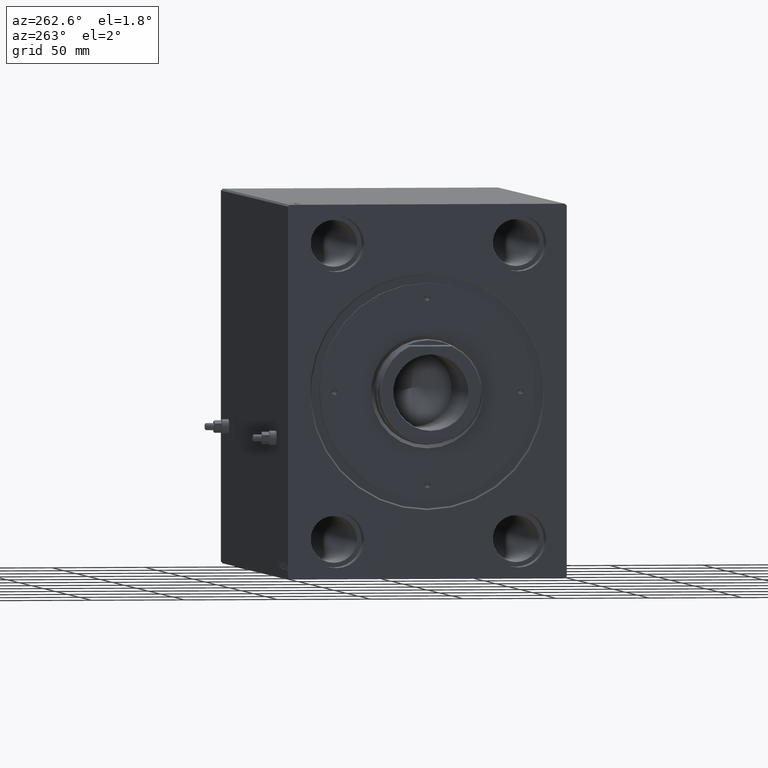
[diagram: clean part render]
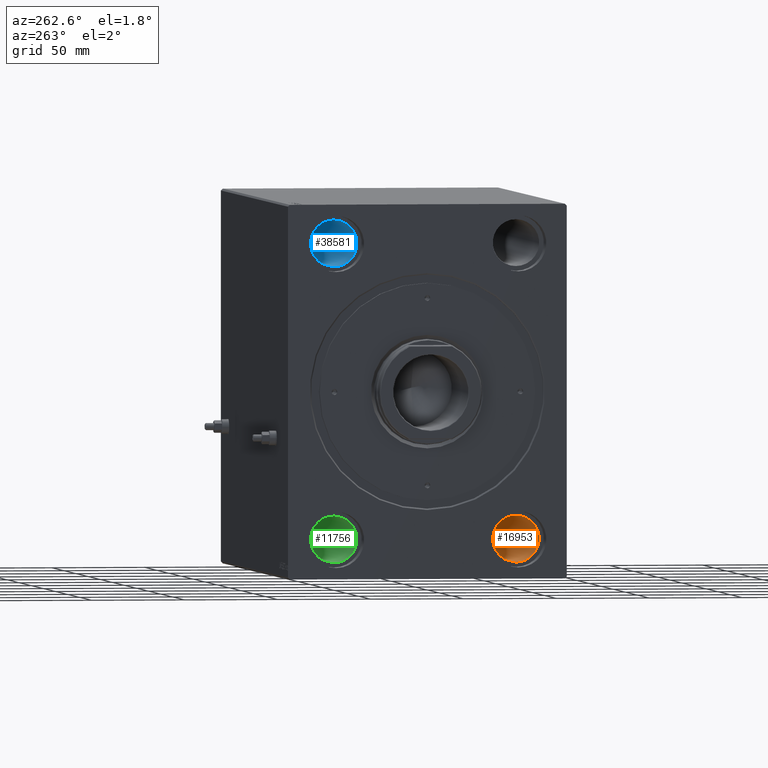
[diagram: same view with three faces highlighted in distinct colors, each labeled with its STEP entity id]
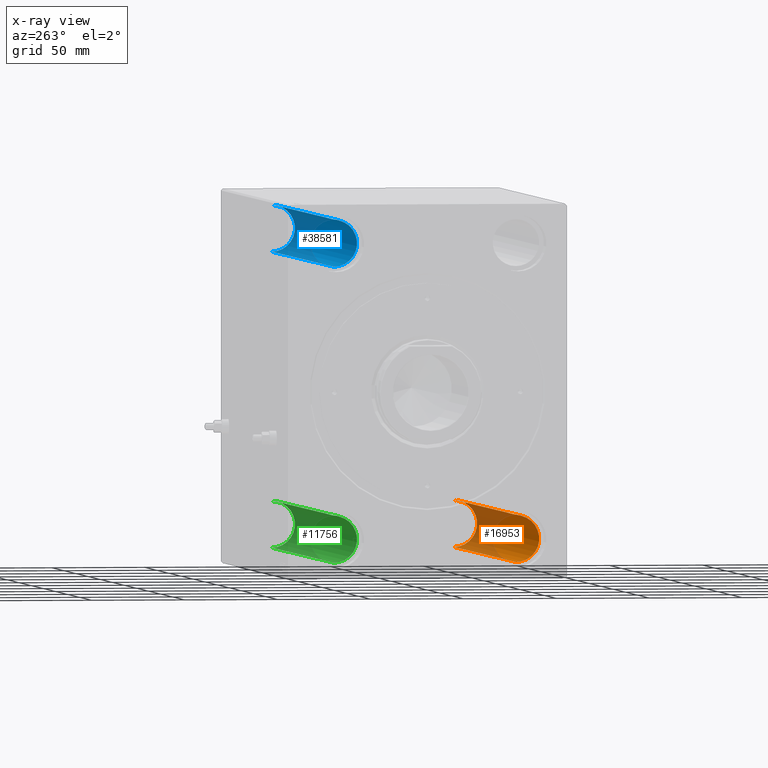
[diagram: x-ray of the same camera — body ghosted, the three highlighted faces saturated]
A machine part, auxiliary view with three faces highlighted in distinct colors.
The next image is the same camera in x-ray (body ghosted, the three faces saturated) — at least one of them is partly hidden behind the body in this view.
Their STEP definitions:

[orange] entity #16953 — the highlighted cylindrical surface (edge-blend (fillet) strip) has radius 12.5 mm, axis along (-1, -0, -0).
#1138 = CARTESIAN_POINT ( 'NONE',  ( 267.6700000000000159, -48.99999999999999289, -91.50000000000002842 ) ) ;
#2974 = CARTESIAN_POINT ( 'NONE',  ( 278.0000000000000000, -48.99999999999999289, -91.50000000000002842 ) ) ;
#4740 = AXIS2_PLACEMENT_3D ( 'NONE', #39464, #7528, #35357 ) ;
#5163 = ORIENTED_EDGE ( 'NONE', *, *, #21609, .F. ) ;
#5514 = DIRECTION ( 'NONE',  ( 1.000000000000000000, -0.000000000000000000, -0.000000000000000000 ) ) ;
#6031 = EDGE_CURVE ( 'NONE', #15477, #23171, #17551, .T. ) ;
#6060 = AXIS2_PLACEMENT_3D ( 'NONE', #38585, #10068, #23996 ) ;
#6751 = CARTESIAN_POINT ( 'NONE',  ( 267.6700000000000159, -48.99999999999999289, -66.50000000000000000 ) ) ;
#7347 = DIRECTION ( 'NONE',  ( -1.000000000000000000, -0.000000000000000000, -0.000000000000000000 ) ) ;
#7528 = DIRECTION ( 'NONE',  ( -1.000000000000000000, 0.000000000000000000, 0.000000000000000000 ) ) ;
#9175 = CARTESIAN_POINT ( 'NONE',  ( 10.33000000000000540, -48.99999999999999289, -79.00000000000001421 ) ) ;
#10068 = DIRECTION ( 'NONE',  ( -1.000000000000000000, -0.000000000000000000, -0.000000000000000000 ) ) ;
#10274 = AXIS2_PLACEMENT_3D ( 'NONE', #9175, #5514, #37242 ) ;
#10730 = CYLINDRICAL_SURFACE ( 'NONE', #6060, 12.50000000000001066 ) ;
#13025 = DIRECTION ( 'NONE',  ( -1.000000000000000000, -0.000000000000000000, -0.000000000000000000 ) ) ;
#14363 = EDGE_CURVE ( 'NONE', #37251, #23171, #23985, .T. ) ;
#15477 = VERTEX_POINT ( 'NONE', #35317 ) ;
#16953 = ADVANCED_FACE ( 'NONE', ( #41345 ), #10730, .F. ) ;
#17551 = CIRCLE ( 'NONE', #10274, 12.50000000000001066 ) ;
#18606 = CIRCLE ( 'NONE', #4740, 12.50000000000001066 ) ;
#18884 = VERTEX_POINT ( 'NONE', #6751 ) ;
#21609 = EDGE_CURVE ( 'NONE', #18884, #15477, #28782, .T. ) ;
#22815 = EDGE_CURVE ( 'NONE', #37251, #18884, #18606, .T. ) ;
#23171 = VERTEX_POINT ( 'NONE', #27077 ) ;
#23985 = LINE ( 'NONE', #2974, #43172 ) ;
#23996 = DIRECTION ( 'NONE',  ( 0.000000000000000000, 0.000000000000000000, 1.000000000000000000 ) ) ;
#27077 = CARTESIAN_POINT ( 'NONE',  ( 10.33000000000000540, -48.99999999999999289, -91.50000000000002842 ) ) ;
#28782 = LINE ( 'NONE', #35400, #30265 ) ;
#30265 = VECTOR ( 'NONE', #7347, 1000.000000000000000 ) ;
#30913 = ORIENTED_EDGE ( 'NONE', *, *, #6031, .F. ) ;
#35317 = CARTESIAN_POINT ( 'NONE',  ( 10.33000000000000540, -48.99999999999999289, -66.50000000000000000 ) ) ;
#35357 = DIRECTION ( 'NONE',  ( 0.000000000000000000, 0.000000000000000000, 1.000000000000000000 ) ) ;
#35400 = CARTESIAN_POINT ( 'NONE',  ( 278.0000000000000000, -48.99999999999999289, -66.50000000000000000 ) ) ;
#36326 = ORIENTED_EDGE ( 'NONE', *, *, #14363, .T. ) ;
#37242 = DIRECTION ( 'NONE',  ( 0.000000000000000000, 0.000000000000000000, -1.000000000000000000 ) ) ;
#37251 = VERTEX_POINT ( 'NONE', #1138 ) ;
#38585 = CARTESIAN_POINT ( 'NONE',  ( 278.0000000000000000, -48.99999999999999289, -79.00000000000001421 ) ) ;
#39464 = CARTESIAN_POINT ( 'NONE',  ( 267.6700000000000159, -48.99999999999999289, -79.00000000000001421 ) ) ;
#39658 = ORIENTED_EDGE ( 'NONE', *, *, #22815, .F. ) ;
#40777 = EDGE_LOOP ( 'NONE', ( #39658, #36326, #30913, #5163 ) ) ;
#41345 = FACE_OUTER_BOUND ( 'NONE', #40777, .T. ) ;
#43172 = VECTOR ( 'NONE', #13025, 1000.000000000000000 ) ;

[blue] entity #38581 — the highlighted cylindrical surface (edge-blend (fillet) strip) has radius 12.5 mm, axis along (-1, -0, -0).
#1235 = CARTESIAN_POINT ( 'NONE',  ( 267.6700000000000159, 49.00000000000000711, 79.00000000000001421 ) ) ;
#2725 = AXIS2_PLACEMENT_3D ( 'NONE', #40489, #9216, #6013 ) ;
#5084 = VERTEX_POINT ( 'NONE', #45143 ) ;
#6013 = DIRECTION ( 'NONE',  ( 0.000000000000000000, 0.000000000000000000, 1.000000000000000000 ) ) ;
#6682 = VECTOR ( 'NONE', #23273, 1000.000000000000000 ) ;
#8510 = DIRECTION ( 'NONE',  ( -1.000000000000000000, -0.000000000000000000, -0.000000000000000000 ) ) ;
#8766 = CYLINDRICAL_SURFACE ( 'NONE', #2725, 12.50000000000001066 ) ;
#9112 = CARTESIAN_POINT ( 'NONE',  ( 278.0000000000000000, 49.00000000000000711, 66.50000000000000000 ) ) ;
#9216 = DIRECTION ( 'NONE',  ( -1.000000000000000000, -0.000000000000000000, -0.000000000000000000 ) ) ;
#9811 = VECTOR ( 'NONE', #8510, 1000.000000000000000 ) ;
#11917 = ORIENTED_EDGE ( 'NONE', *, *, #12131, .T. ) ;
#12131 = EDGE_CURVE ( 'NONE', #5084, #28174, #30116, .T. ) ;
#12382 = DIRECTION ( 'NONE',  ( 1.000000000000000000, -0.000000000000000000, -0.000000000000000000 ) ) ;
#13551 = ORIENTED_EDGE ( 'NONE', *, *, #21010, .F. ) ;
#14497 = DIRECTION ( 'NONE',  ( 0.000000000000000000, 0.000000000000000000, 1.000000000000000000 ) ) ;
#15133 = DIRECTION ( 'NONE',  ( 0.000000000000000000, 0.000000000000000000, -1.000000000000000000 ) ) ;
#17463 = EDGE_CURVE ( 'NONE', #5084, #37064, #39585, .T. ) ;
#17941 = DIRECTION ( 'NONE',  ( -1.000000000000000000, 0.000000000000000000, 0.000000000000000000 ) ) ;
#20667 = AXIS2_PLACEMENT_3D ( 'NONE', #1235, #17941, #14497 ) ;
#21010 = EDGE_CURVE ( 'NONE', #37064, #40436, #39560, .T. ) ;
#23273 = DIRECTION ( 'NONE',  ( -1.000000000000000000, -0.000000000000000000, -0.000000000000000000 ) ) ;
#24844 = EDGE_LOOP ( 'NONE', ( #30838, #11917, #40250, #13551 ) ) ;
#26181 = CARTESIAN_POINT ( 'NONE',  ( 10.33000000000000540, 49.00000000000000711, 66.50000000000000000 ) ) ;
#26762 = CARTESIAN_POINT ( 'NONE',  ( 10.33000000000000540, 49.00000000000000711, 91.50000000000002842 ) ) ;
#28174 = VERTEX_POINT ( 'NONE', #26181 ) ;
#30116 = LINE ( 'NONE', #9112, #6682 ) ;
#30496 = AXIS2_PLACEMENT_3D ( 'NONE', #32486, #12382, #15133 ) ;
#30838 = ORIENTED_EDGE ( 'NONE', *, *, #17463, .F. ) ;
#32486 = CARTESIAN_POINT ( 'NONE',  ( 10.33000000000000540, 49.00000000000000711, 79.00000000000001421 ) ) ;
#33156 = CARTESIAN_POINT ( 'NONE',  ( 278.0000000000000000, 49.00000000000000711, 91.50000000000002842 ) ) ;
#35568 = CIRCLE ( 'NONE', #30496, 12.50000000000001066 ) ;
#36074 = EDGE_CURVE ( 'NONE', #40436, #28174, #35568, .T. ) ;
#37064 = VERTEX_POINT ( 'NONE', #39104 ) ;
#38581 = ADVANCED_FACE ( 'NONE', ( #40034 ), #8766, .F. ) ;
#39104 = CARTESIAN_POINT ( 'NONE',  ( 267.6700000000000159, 49.00000000000000711, 91.50000000000002842 ) ) ;
#39560 = LINE ( 'NONE', #33156, #9811 ) ;
#39585 = CIRCLE ( 'NONE', #20667, 12.50000000000001066 ) ;
#40034 = FACE_OUTER_BOUND ( 'NONE', #24844, .T. ) ;
#40250 = ORIENTED_EDGE ( 'NONE', *, *, #36074, .F. ) ;
#40436 = VERTEX_POINT ( 'NONE', #26762 ) ;
#40489 = CARTESIAN_POINT ( 'NONE',  ( 278.0000000000000000, 49.00000000000000711, 79.00000000000001421 ) ) ;
#45143 = CARTESIAN_POINT ( 'NONE',  ( 267.6700000000000159, 49.00000000000000711, 66.50000000000000000 ) ) ;

[green] entity #11756 — the highlighted cylindrical surface (edge-blend (fillet) strip) has radius 12.5 mm, axis along (-1, -0, -0).
#1286 = CARTESIAN_POINT ( 'NONE',  ( 267.6700000000000159, 49.00000000000000711, -91.50000000000002842 ) ) ;
#2628 = CARTESIAN_POINT ( 'NONE',  ( 278.0000000000000000, 49.00000000000000711, -91.50000000000002842 ) ) ;
#3689 = EDGE_CURVE ( 'NONE', #42648, #15520, #4372, .T. ) ;
#4372 = CIRCLE ( 'NONE', #42288, 12.50000000000001066 ) ;
#6895 = DIRECTION ( 'NONE',  ( 0.000000000000000000, 0.000000000000000000, -1.000000000000000000 ) ) ;
#7643 = VERTEX_POINT ( 'NONE', #24573 ) ;
#8387 = ORIENTED_EDGE ( 'NONE', *, *, #3689, .T. ) ;
#8511 = ORIENTED_EDGE ( 'NONE', *, *, #14869, .T. ) ;
#11756 = ADVANCED_FACE ( 'NONE', ( #35870 ), #18539, .F. ) ;
#12784 = VERTEX_POINT ( 'NONE', #13595 ) ;
#13595 = CARTESIAN_POINT ( 'NONE',  ( 10.33000000000000540, 49.00000000000000711, -66.50000000000000000 ) ) ;
#13729 = CARTESIAN_POINT ( 'NONE',  ( 267.6700000000000159, 49.00000000000000711, -79.00000000000001421 ) ) ;
#14869 = EDGE_CURVE ( 'NONE', #15520, #7643, #33918, .T. ) ;
#15197 = EDGE_LOOP ( 'NONE', ( #8387, #8511, #33348, #36011 ) ) ;
#15520 = VERTEX_POINT ( 'NONE', #1286 ) ;
#15999 = EDGE_CURVE ( 'NONE', #7643, #12784, #20635, .T. ) ;
#18539 = CYLINDRICAL_SURFACE ( 'NONE', #32198, 12.50000000000001066 ) ;
#18956 = VECTOR ( 'NONE', #36778, 1000.000000000000000 ) ;
#20635 = CIRCLE ( 'NONE', #35898, 12.50000000000001066 ) ;
#24573 = CARTESIAN_POINT ( 'NONE',  ( 10.33000000000000540, 49.00000000000000711, -91.50000000000002842 ) ) ;
#25391 = DIRECTION ( 'NONE',  ( -1.000000000000000000, 0.000000000000000000, 0.000000000000000000 ) ) ;
#25608 = DIRECTION ( 'NONE',  ( 0.000000000000000000, 0.000000000000000000, 1.000000000000000000 ) ) ;
#27085 = DIRECTION ( 'NONE',  ( -1.000000000000000000, -0.000000000000000000, -0.000000000000000000 ) ) ;
#32198 = AXIS2_PLACEMENT_3D ( 'NONE', #40205, #32902, #25608 ) ;
#32902 = DIRECTION ( 'NONE',  ( -1.000000000000000000, -0.000000000000000000, -0.000000000000000000 ) ) ;
#33348 = ORIENTED_EDGE ( 'NONE', *, *, #15999, .T. ) ;
#33918 = LINE ( 'NONE', #2628, #36609 ) ;
#35178 = DIRECTION ( 'NONE',  ( 1.000000000000000000, 0.000000000000000000, 0.000000000000000000 ) ) ;
#35870 = FACE_OUTER_BOUND ( 'NONE', #15197, .T. ) ;
#35878 = CARTESIAN_POINT ( 'NONE',  ( 278.0000000000000000, 49.00000000000000711, -66.50000000000000000 ) ) ;
#35898 = AXIS2_PLACEMENT_3D ( 'NONE', #42743, #25391, #39312 ) ;
#36011 = ORIENTED_EDGE ( 'NONE', *, *, #44014, .F. ) ;
#36609 = VECTOR ( 'NONE', #27085, 1000.000000000000000 ) ;
#36778 = DIRECTION ( 'NONE',  ( -1.000000000000000000, -0.000000000000000000, -0.000000000000000000 ) ) ;
#39312 = DIRECTION ( 'NONE',  ( 0.000000000000000000, 0.000000000000000000, 1.000000000000000000 ) ) ;
#39314 = LINE ( 'NONE', #35878, #18956 ) ;
#40205 = CARTESIAN_POINT ( 'NONE',  ( 278.0000000000000000, 49.00000000000000711, -79.00000000000001421 ) ) ;
#42288 = AXIS2_PLACEMENT_3D ( 'NONE', #13729, #35178, #6895 ) ;
#42648 = VERTEX_POINT ( 'NONE', #42996 ) ;
#42743 = CARTESIAN_POINT ( 'NONE',  ( 10.33000000000000540, 49.00000000000000711, -79.00000000000001421 ) ) ;
#42996 = CARTESIAN_POINT ( 'NONE',  ( 267.6700000000000159, 49.00000000000000711, -66.50000000000000000 ) ) ;
#44014 = EDGE_CURVE ( 'NONE', #42648, #12784, #39314, .T. ) ;